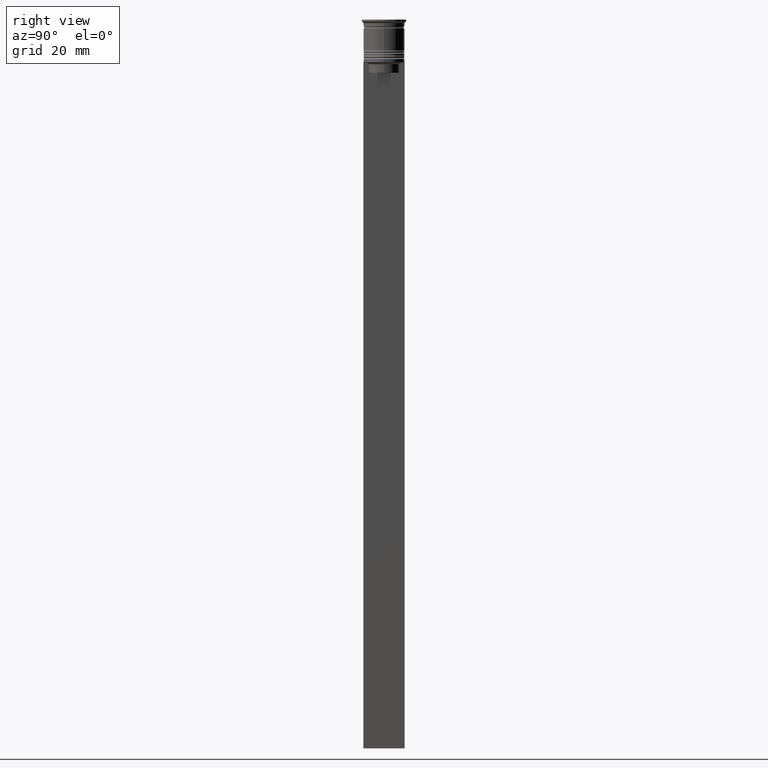
[diagram: clean part render]
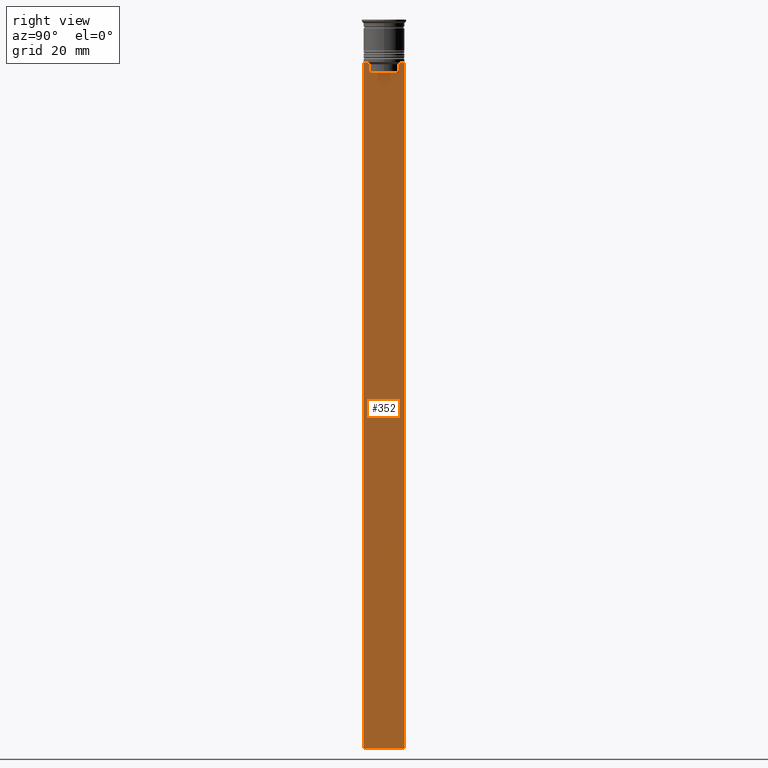
[diagram: same view with one face highlighted and labeled with its STEP entity id]
A machine part, right view. The second image highlights one B-rep face of the part: STEP entity #352.
In plain terms, the highlighted planar face has unit normal (-1, 0, 0).
Its self-contained STEP definition (entity closure, byte-faithful):
#122 = LINE ( 'NONE', #1623, #167 ) ;
#147 = DIRECTION ( 'NONE',  ( 0.000000000000000000, -1.000000000000000000, 0.000000000000000000 ) ) ;
#167 = VECTOR ( 'NONE', #2059, 1000.000000000000000 ) ;
#198 = EDGE_CURVE ( 'NONE', #2214, #2081, #1408, .T. ) ;
#208 = AXIS2_PLACEMENT_3D ( 'NONE', #1511, #2329, #1912 ) ;
#256 = LINE ( 'NONE', #1051, #566 ) ;
#262 = ORIENTED_EDGE ( 'NONE', *, *, #198, .T. ) ;
#296 = ORIENTED_EDGE ( 'NONE', *, *, #458, .T. ) ;
#324 = EDGE_LOOP ( 'NONE', ( #1844, #262, #2439, #2443, #834, #296, #485, #2121, #2306, #856, #441, #464 ) ) ;
#352 = ADVANCED_FACE ( 'NONE', ( #779 ), #1545, .F. ) ;
#378 = EDGE_CURVE ( 'NONE', #1810, #1395, #2101, .T. ) ;
#383 = CARTESIAN_POINT ( 'NONE',  ( 0.5000000000000002220, 6.000000000000000888, -12.50000000000000000 ) ) ;
#388 = CARTESIAN_POINT ( 'NONE',  ( 0.5000000000000002220, 6.000000000000000888, -212.5000000000000284 ) ) ;
#428 = CARTESIAN_POINT ( 'NONE',  ( 0.5000000000000002220, -4.539195586926423331, -12.83338928448044314 ) ) ;
#441 = ORIENTED_EDGE ( 'NONE', *, *, #1996, .F. ) ;
#458 = EDGE_CURVE ( 'NONE', #1794, #1627, #1654, .T. ) ;
#464 = ORIENTED_EDGE ( 'NONE', *, *, #1448, .T. ) ;
#472 = EDGE_CURVE ( 'NONE', #1865, #1794, #1025, .T. ) ;
#485 = ORIENTED_EDGE ( 'NONE', *, *, #2248, .T. ) ;
#566 = VECTOR ( 'NONE', #1826, 1000.000000000000000 ) ;
#654 = VECTOR ( 'NONE', #2284, 1000.000000000000000 ) ;
#715 = CARTESIAN_POINT ( 'NONE',  ( 0.5000000000000002220, 4.874423042781576676, -12.50000000000000000 ) ) ;
#776 = VECTOR ( 'NONE', #2095, 1000.000000000000000 ) ;
#779 = FACE_OUTER_BOUND ( 'NONE', #324, .T. ) ;
#791 = CARTESIAN_POINT ( 'NONE',  ( 0.5000000000000002220, -4.874423042781576676, -12.50000000000000000 ) ) ;
#801 = CARTESIAN_POINT ( 'NONE',  ( 0.5000000000000002220, -4.706831372970962768, -12.66671687695981774 ) ) ;
#834 = ORIENTED_EDGE ( 'NONE', *, *, #472, .T. ) ;
#856 = ORIENTED_EDGE ( 'NONE', *, *, #2245, .T. ) ;
#916 = CARTESIAN_POINT ( 'NONE',  ( 0.5000000000000002220, -6.000000000000000000, -12.50000000000000000 ) ) ;
#1020 = DIRECTION ( 'NONE',  ( 0.000000000000000000, -1.000000000000000000, 0.000000000000000000 ) ) ;
#1025 = LINE ( 'NONE', #2362, #1992 ) ;
#1033 = CARTESIAN_POINT ( 'NONE',  ( 0.5000000000000002220, -5.878775382679627626, -12.50000000000000000 ) ) ;
#1044 = LINE ( 'NONE', #2433, #1895 ) ;
#1051 = CARTESIAN_POINT ( 'NONE',  ( 0.5000000000000002220, -6.000000000000000000, -12.50000000000000000 ) ) ;
#1083 = LINE ( 'NONE', #1432, #1566 ) ;
#1103 = CARTESIAN_POINT ( 'NONE',  ( 0.5000000000000002220, -6.000000000000000000, -0.4584054212077061097 ) ) ;
#1146 = EDGE_CURVE ( 'NONE', #2005, #2214, #1696, .T. ) ;
#1203 = VERTEX_POINT ( 'NONE', #383 ) ;
#1233 = CARTESIAN_POINT ( 'NONE',  ( 0.5000000000000002220, -6.000000000000000000, -12.50000000000000000 ) ) ;
#1253 = CARTESIAN_POINT ( 'NONE',  ( 0.5000000000000002220, 4.399999999999999467, -15.50000000000000000 ) ) ;
#1269 = VERTEX_POINT ( 'NONE', #2163 ) ;
#1332 = DIRECTION ( 'NONE',  ( 0.000000000000000000, 0.000000000000000000, -1.000000000000000000 ) ) ;
#1357 = LINE ( 'NONE', #1878, #2227 ) ;
#1395 = VERTEX_POINT ( 'NONE', #1642 ) ;
#1408 = B_SPLINE_CURVE_WITH_KNOTS ( 'NONE', 3,
 ( #715, #1825, #1863, #2441 ),
 .UNSPECIFIED., .F., .F.,
 ( 4, 4 ),
 ( 0.008336552452178421987, 0.009045730124312839626 ),
 .UNSPECIFIED. ) ;
#1432 = CARTESIAN_POINT ( 'NONE',  ( 0.5000000000000002220, -6.000000000000000000, -12.50000000000000000 ) ) ;
#1436 = CARTESIAN_POINT ( 'NONE',  ( 0.5000000000000002220, -4.371498598878878816, -15.50000000000000000 ) ) ;
#1448 = EDGE_CURVE ( 'NONE', #1203, #2005, #1044, .T. ) ;
#1511 = CARTESIAN_POINT ( 'NONE',  ( 0.5000000000000002220, -6.000000000000000000, -0.4584054212077061097 ) ) ;
#1545 = PLANE ( 'NONE',  #208 ) ;
#1566 = VECTOR ( 'NONE', #147, 1000.000000000000000 ) ;
#1608 = CARTESIAN_POINT ( 'NONE',  ( 0.5000000000000002220, -4.874423042781576676, -12.50000000000000000 ) ) ;
#1623 = CARTESIAN_POINT ( 'NONE',  ( 0.5000000000000002220, -6.000000000000000000, -212.5000000000000284 ) ) ;
#1627 = VERTEX_POINT ( 'NONE', #791 ) ;
#1635 = DIRECTION ( 'NONE',  ( 0.000000000000000000, -1.000000000000000000, 0.000000000000000000 ) ) ;
#1642 = CARTESIAN_POINT ( 'NONE',  ( 0.5000000000000002220, -6.000000000000000000, -212.5000000000000284 ) ) ;
#1654 = B_SPLINE_CURVE_WITH_KNOTS ( 'NONE', 3,
 ( #2156, #428, #801, #1608 ),
 .UNSPECIFIED., .F., .F.,
 ( 4, 4 ),
 ( 0.02089901220910808308, 0.02161421017310286019 ),
 .UNSPECIFIED. ) ;
#1696 = LINE ( 'NONE', #916, #776 ) ;
#1739 = CARTESIAN_POINT ( 'NONE',  ( 0.5000000000000002220, 5.878775382679627626, -12.50000000000000000 ) ) ;
#1763 = CARTESIAN_POINT ( 'NONE',  ( 0.5000000000000002220, 4.371498598878878816, -13.00000000000000178 ) ) ;
#1794 = VERTEX_POINT ( 'NONE', #1842 ) ;
#1810 = VERTEX_POINT ( 'NONE', #1233 ) ;
#1825 = CARTESIAN_POINT ( 'NONE',  ( 0.5000000000000002220, 4.706831415367288329, -12.66671683478479160 ) ) ;
#1826 = DIRECTION ( 'NONE',  ( 0.000000000000000000, -1.000000000000000000, 0.000000000000000000 ) ) ;
#1842 = CARTESIAN_POINT ( 'NONE',  ( 0.5000000000000002220, -4.371498598878878816, -13.00000000000000178 ) ) ;
#1843 = EDGE_CURVE ( 'NONE', #2199, #1810, #256, .T. ) ;
#1844 = ORIENTED_EDGE ( 'NONE', *, *, #1146, .T. ) ;
#1852 = LINE ( 'NONE', #1931, #2102 ) ;
#1863 = CARTESIAN_POINT ( 'NONE',  ( 0.5000000000000002220, 4.539195634199896467, -12.83338923751318816 ) ) ;
#1865 = VERTEX_POINT ( 'NONE', #1436 ) ;
#1878 = CARTESIAN_POINT ( 'NONE',  ( 0.5000000000000002220, 4.371498598878878816, 0.000000000000000000 ) ) ;
#1895 = VECTOR ( 'NONE', #1020, 1000.000000000000000 ) ;
#1901 = VECTOR ( 'NONE', #1635, 1000.000000000000000 ) ;
#1912 = DIRECTION ( 'NONE',  ( 0.000000000000000000, 0.000000000000000000, 1.000000000000000000 ) ) ;
#1931 = CARTESIAN_POINT ( 'NONE',  ( 0.5000000000000002220, 6.000000000000000888, -0.4584054212077061097 ) ) ;
#1944 = EDGE_CURVE ( 'NONE', #2081, #1269, #1357, .T. ) ;
#1971 = DIRECTION ( 'NONE',  ( -0.000000000000000000, -0.000000000000000000, 1.000000000000000000 ) ) ;
#1992 = VECTOR ( 'NONE', #1971, 1000.000000000000000 ) ;
#1996 = EDGE_CURVE ( 'NONE', #1203, #2003, #1852, .T. ) ;
#2003 = VERTEX_POINT ( 'NONE', #388 ) ;
#2005 = VERTEX_POINT ( 'NONE', #1739 ) ;
#2025 = CARTESIAN_POINT ( 'NONE',  ( 0.5000000000000002220, 4.874423042781576676, -12.50000000000000000 ) ) ;
#2059 = DIRECTION ( 'NONE',  ( 0.000000000000000000, 1.000000000000000000, 0.000000000000000000 ) ) ;
#2081 = VERTEX_POINT ( 'NONE', #1763 ) ;
#2095 = DIRECTION ( 'NONE',  ( 0.000000000000000000, -1.000000000000000000, 0.000000000000000000 ) ) ;
#2101 = LINE ( 'NONE', #1103, #654 ) ;
#2102 = VECTOR ( 'NONE', #1332, 1000.000000000000000 ) ;
#2121 = ORIENTED_EDGE ( 'NONE', *, *, #1843, .T. ) ;
#2156 = CARTESIAN_POINT ( 'NONE',  ( 0.5000000000000002220, -4.371498598878878816, -13.00000000000000178 ) ) ;
#2163 = CARTESIAN_POINT ( 'NONE',  ( 0.5000000000000002220, 4.371498598878878816, -15.50000000000000000 ) ) ;
#2199 = VERTEX_POINT ( 'NONE', #1033 ) ;
#2212 = EDGE_CURVE ( 'NONE', #1269, #1865, #2438, .T. ) ;
#2214 = VERTEX_POINT ( 'NONE', #2025 ) ;
#2227 = VECTOR ( 'NONE', #2247, 1000.000000000000000 ) ;
#2245 = EDGE_CURVE ( 'NONE', #1395, #2003, #122, .T. ) ;
#2247 = DIRECTION ( 'NONE',  ( 0.000000000000000000, 0.000000000000000000, -1.000000000000000000 ) ) ;
#2248 = EDGE_CURVE ( 'NONE', #1627, #2199, #1083, .T. ) ;
#2284 = DIRECTION ( 'NONE',  ( 0.000000000000000000, 0.000000000000000000, -1.000000000000000000 ) ) ;
#2306 = ORIENTED_EDGE ( 'NONE', *, *, #378, .T. ) ;
#2329 = DIRECTION ( 'NONE',  ( -1.000000000000000000, 0.000000000000000000, 0.000000000000000000 ) ) ;
#2362 = CARTESIAN_POINT ( 'NONE',  ( 0.5000000000000002220, -4.371498598878878816, 0.000000000000000000 ) ) ;
#2433 = CARTESIAN_POINT ( 'NONE',  ( 0.5000000000000002220, -6.000000000000000000, -12.50000000000000000 ) ) ;
#2438 = LINE ( 'NONE', #1253, #1901 ) ;
#2439 = ORIENTED_EDGE ( 'NONE', *, *, #1944, .T. ) ;
#2441 = CARTESIAN_POINT ( 'NONE',  ( 0.5000000000000002220, 4.371498598878878816, -13.00000000000000178 ) ) ;
#2443 = ORIENTED_EDGE ( 'NONE', *, *, #2212, .T. ) ;